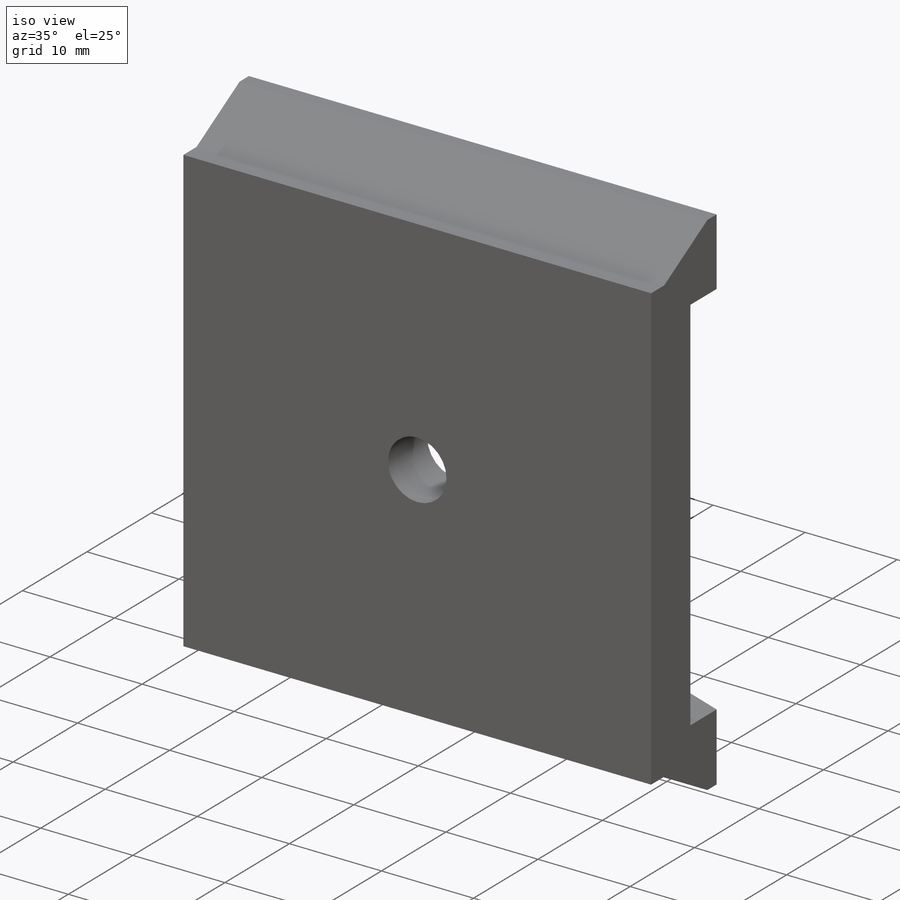
[diagram: iso view]
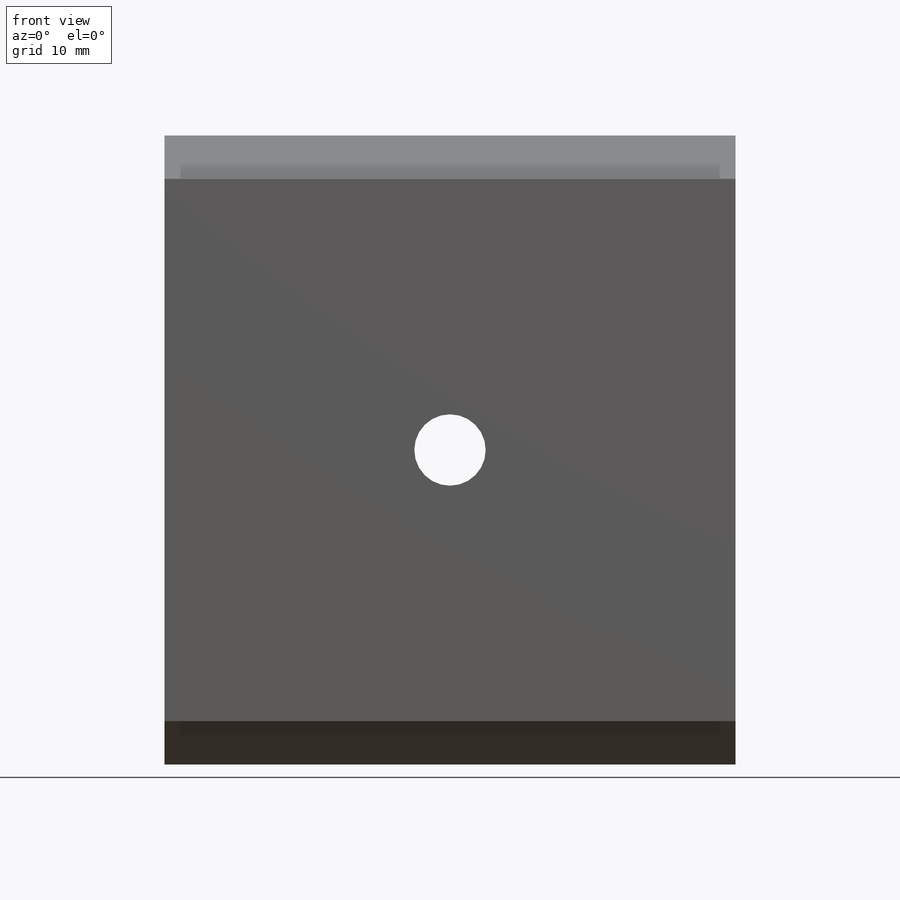
[diagram: front view]
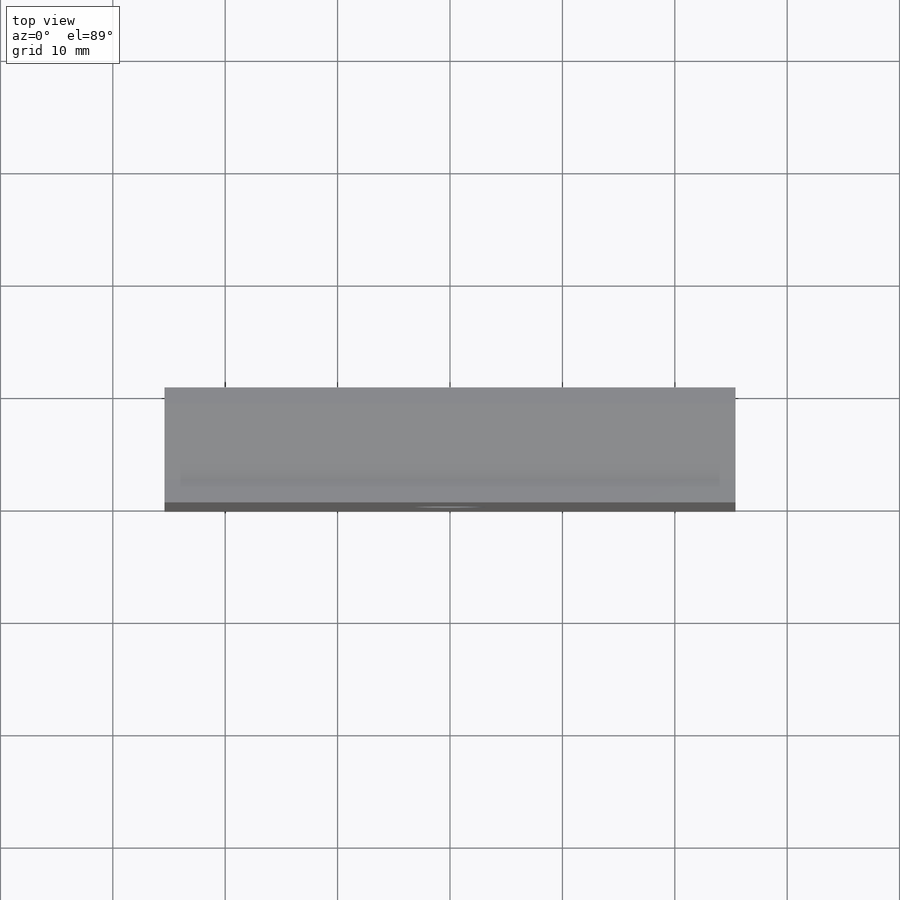
[diagram: top view]
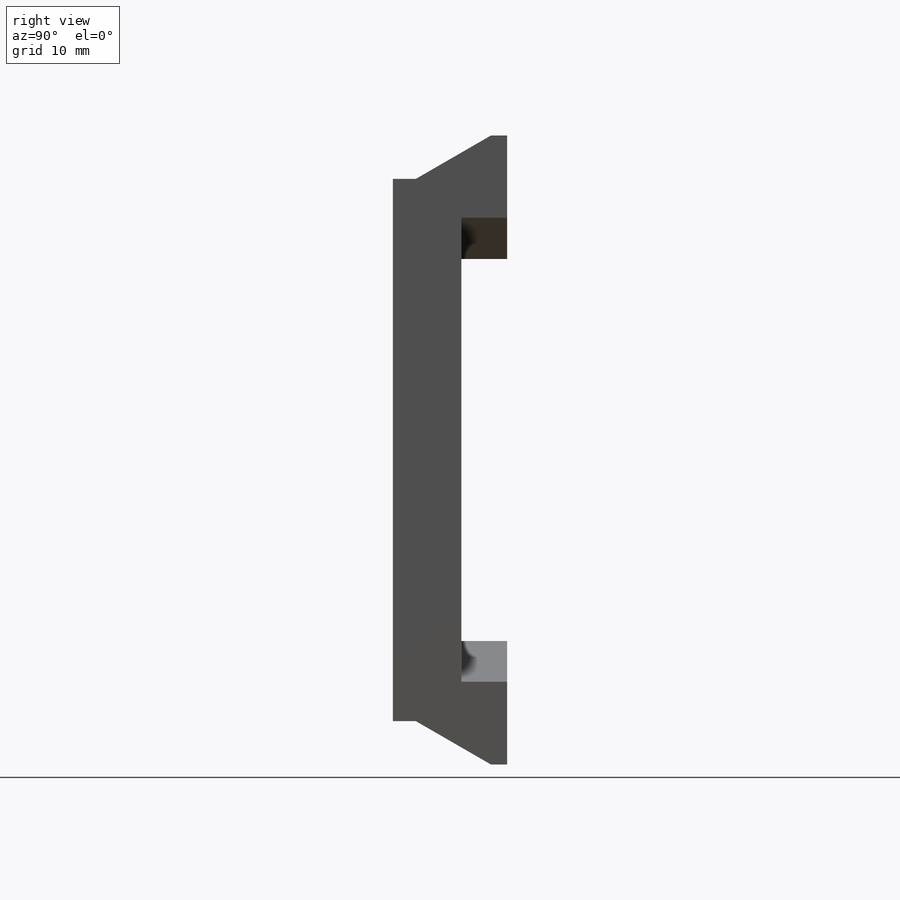
[diagram: right view]
SOLIDWORKS PART (.sldprt)
format: sldprt  version: not decoded by parser v0  size: 239,616 bytes
history: native  units: mm
features: sketch x7, cut_extrude x6, material x1, extrude x1 (+12 scaffold rows collapsed)
feature tree (27):
  scaffold x12  (default folders/planes/origin — collapsed)
  material  "Material <not specified>"
  sketch  "Sketch1"  dims[D1=50.8mm D2=55.9562mm]
  extrude  "Boss-Extrude1"  Depth=10.16mm
  sketch  "Sketch2"  dims[D1=3.8608mm D2=3.8608mm]
  cut_extrude  "Cut-Extrude1"  Depth=2.032mm
  sketch  "Sketch3"  dims[c1.D1=~8.223538mm c2.D1=30.0deg c2.D2=~7.260909mm c3.D2=30.0deg]
  cut_extrude  "Cut-Extrude2"  [1 undecoded]
  sketch  "Sketch4"  dims[D1=6.35mm]
  cut_extrude  "Cut-Extrude3"  [1 undecoded]
  sketch  "Sketch5"  dims[D1=33.9852mm]
  cut_extrude  "Cut-Extrude4"  Depth=4.064mm
  sketch  "Sketch6"  dims[D3=3.175mm D1=42.0116mm D2=19.05mm]
  cut_extrude  "Cut-Extrude5"  Depth=4.064mm
  sketch  "Sketch7"  dims[c1.D1=6.35mm c1.D2=6.35mm c1.D3=6.35mm c1.D4=6.35mm c1.D5=6.35mm c2.D5=30.0deg c2.D6=~7.478199mm c3.D6=30.0deg c3.D7=6.35mm c4.D7=30.0deg c5.D7=6.35mm c6.D7=30.0deg c7.D7=3.175mm c7.D4=~7.319326mm c7.D2=7.366mm c7.D1=~7.319326mm c7.D3=~7.319326mm c7.D5=3.175mm]
  cut_extrude  "Cut-Extrude6"  Depth=4.064mm
decode coverage: 12 of 14 modeling features carry decoded parameters
note: ~ marks probable driven/reference dimensions
note: 2 parameter values undecoded
note: suppression state not decoded; provenance and decode notes live in map.json
